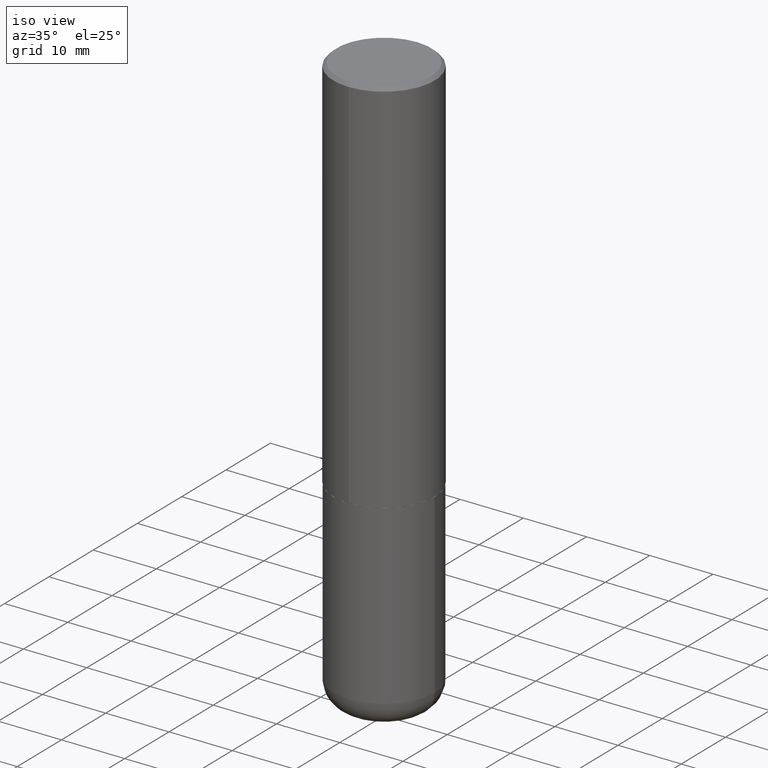
[diagram: clean part render]
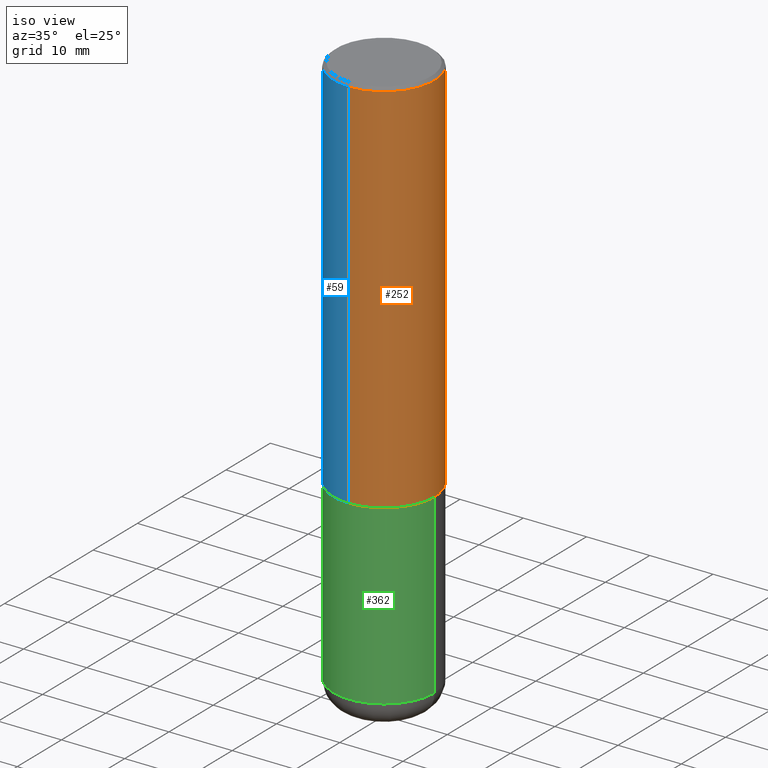
[diagram: same view with three faces highlighted in distinct colors, each labeled with its STEP entity id]
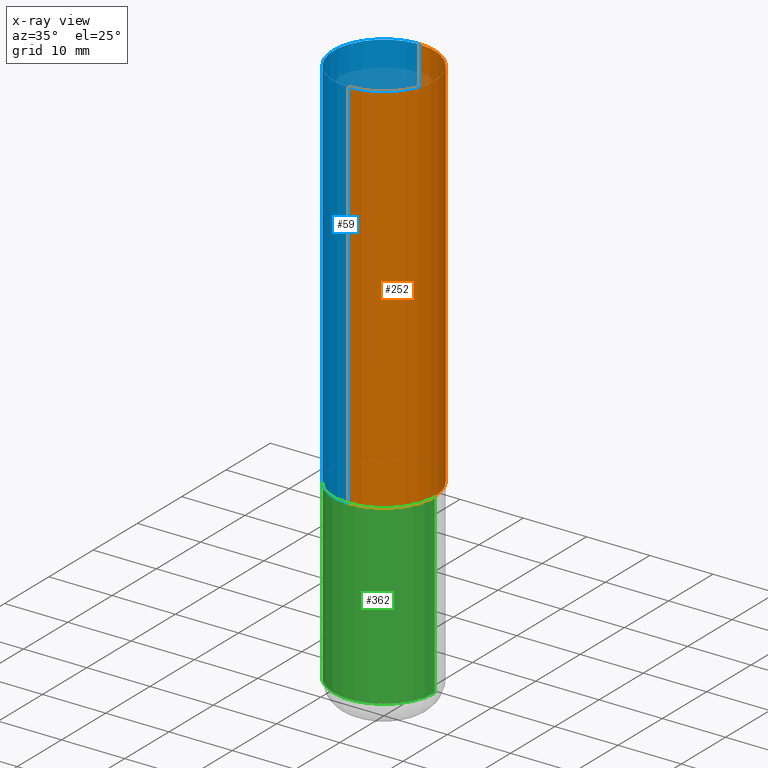
[diagram: x-ray of the same camera — body ghosted, the three highlighted faces saturated]
A machine part, iso view with three faces highlighted in distinct colors.
The next image is the same camera in x-ray (body ghosted, the three faces saturated) — at least one of them is partly hidden behind the body in this view.
Their STEP definitions:

[orange] entity #252 — the highlighted cylindrical surface (partial cylindrical patch) has radius 7.9997 mm, axis along (-0, 0, 1).
#7 = DIRECTION ( 'NONE',  ( -6.982962677686265922E-15, -1.000000000000000000, 3.469564049740290009E-15 ) ) ;
#11 = CARTESIAN_POINT ( 'NONE',  ( -2.160713844398143757E-15, -0.3149500000000001743, -0.01999999999999898387 ) ) ;
#14 = EDGE_CURVE ( 'NONE', #197, #44, #286, .T. ) ;
#40 = CARTESIAN_POINT ( 'NONE',  ( -2.199284095337290265E-15, -0.3149500000000001743, 1.100732624839394981E-15 ) ) ;
#44 = VERTEX_POINT ( 'NONE', #11 ) ;
#50 = CARTESIAN_POINT ( 'NONE',  ( -2.199284095337233467E-15, -0.3149500000000085564, -2.361199999999998411 ) ) ;
#53 = CARTESIAN_POINT ( 'NONE',  ( 0.000000000000000000, 0.000000000000000000, 0.000000000000000000 ) ) ;
#54 = VERTEX_POINT ( 'NONE', #390 ) ;
#68 = LINE ( 'NONE', #202, #392 ) ;
#70 = EDGE_CURVE ( 'NONE', #197, #54, #271, .T. ) ;
#73 = CARTESIAN_POINT ( 'NONE',  ( 4.886101632258876704E-31, -6.989888076452765624E-17, -0.02000000000000008715 ) ) ;
#75 = DIRECTION ( 'NONE',  ( -6.982962677686265922E-15, -1.000000000000000000, 3.496670018878888311E-15 ) ) ;
#100 = ORIENTED_EDGE ( 'NONE', *, *, #337, .T. ) ;
#122 = FACE_OUTER_BOUND ( 'NONE', #412, .T. ) ;
#150 = EDGE_CURVE ( 'NONE', #44, #182, #384, .T. ) ;
#160 = ORIENTED_EDGE ( 'NONE', *, *, #70, .T. ) ;
#182 = VERTEX_POINT ( 'NONE', #217 ) ;
#187 = DIRECTION ( 'NONE',  ( -2.443050816129427755E-29, 3.494944038226367750E-15, 1.000000000000000000 ) ) ;
#197 = VERTEX_POINT ( 'NONE', #50 ) ;
#202 = CARTESIAN_POINT ( 'NONE',  ( 2.237854346276435985E-15, 0.3149500000000001743, -1.100732624839394981E-15 ) ) ;
#212 = DIRECTION ( 'NONE',  ( -2.443050816129427755E-29, 3.494944038226367750E-15, 1.000000000000000000 ) ) ;
#217 = CARTESIAN_POINT ( 'NONE',  ( 2.199284095337290265E-15, 0.3149500000000000077, -0.02000000000000118697 ) ) ;
#221 = VECTOR ( 'NONE', #319, 39.37007874015748143 ) ;
#226 = DIRECTION ( 'NONE',  ( -6.982962677686264344E-15, -1.000000000000000000, 3.494944038226367355E-15 ) ) ;
#240 = CARTESIAN_POINT ( 'NONE',  ( 5.768531587044804082E-29, -8.252261863060098117E-15, -2.361199999999999299 ) ) ;
#250 = ORIENTED_EDGE ( 'NONE', *, *, #150, .F. ) ;
#252 = ADVANCED_FACE ( 'NONE', ( #122 ), #341, .T. ) ;
#271 = CIRCLE ( 'NONE', #354, 0.3149500000000002853 ) ;
#286 = LINE ( 'NONE', #40, #221 ) ;
#300 = ORIENTED_EDGE ( 'NONE', *, *, #14, .F. ) ;
#317 = DIRECTION ( 'NONE',  ( -2.443050816129427755E-29, 3.494944038226367750E-15, 1.000000000000000000 ) ) ;
#319 = DIRECTION ( 'NONE',  ( -2.443050816129427755E-29, 3.494944038226367750E-15, 1.000000000000000000 ) ) ;
#337 = EDGE_CURVE ( 'NONE', #54, #182, #68, .T. ) ;
#341 = CYLINDRICAL_SURFACE ( 'NONE', #361, 0.3149500000000001743 ) ;
#354 = AXIS2_PLACEMENT_3D ( 'NONE', #240, #212, #7 ) ;
#361 = AXIS2_PLACEMENT_3D ( 'NONE', #53, #187, #226 ) ;
#384 = CIRCLE ( 'NONE', #416, 0.3149500000000000632 ) ;
#389 = DIRECTION ( 'NONE',  ( -2.443050816129427755E-29, 3.494944038226367750E-15, 1.000000000000000000 ) ) ;
#390 = CARTESIAN_POINT ( 'NONE',  ( 2.237854346276465567E-15, 0.3149499999999920141, -2.361200000000000632 ) ) ;
#392 = VECTOR ( 'NONE', #317, 39.37007874015748143 ) ;
#412 = EDGE_LOOP ( 'NONE', ( #160, #100, #250, #300 ) ) ;
#416 = AXIS2_PLACEMENT_3D ( 'NONE', #73, #389, #75 ) ;

[blue] entity #59 — the highlighted cylindrical surface (partial cylindrical patch) has radius 7.9997 mm, axis along (-0, 0, 1).
#11 = CARTESIAN_POINT ( 'NONE',  ( -2.160713844398143757E-15, -0.3149500000000001743, -0.01999999999999898387 ) ) ;
#12 = FACE_OUTER_BOUND ( 'NONE', #193, .T. ) ;
#14 = EDGE_CURVE ( 'NONE', #197, #44, #286, .T. ) ;
#25 = ORIENTED_EDGE ( 'NONE', *, *, #14, .T. ) ;
#40 = CARTESIAN_POINT ( 'NONE',  ( -2.199284095337290265E-15, -0.3149500000000001743, 1.100732624839394981E-15 ) ) ;
#44 = VERTEX_POINT ( 'NONE', #11 ) ;
#50 = CARTESIAN_POINT ( 'NONE',  ( -2.199284095337233467E-15, -0.3149500000000085564, -2.361199999999998411 ) ) ;
#54 = VERTEX_POINT ( 'NONE', #390 ) ;
#59 = ADVANCED_FACE ( 'NONE', ( #12 ), #107, .T. ) ;
#68 = LINE ( 'NONE', #202, #392 ) ;
#82 = ORIENTED_EDGE ( 'NONE', *, *, #337, .F. ) ;
#92 = EDGE_CURVE ( 'NONE', #182, #44, #135, .T. ) ;
#98 = CARTESIAN_POINT ( 'NONE',  ( 5.768531587044804082E-29, -8.252261863060098117E-15, -2.361199999999999299 ) ) ;
#107 = CYLINDRICAL_SURFACE ( 'NONE', #275, 0.3149500000000001743 ) ;
#135 = CIRCLE ( 'NONE', #313, 0.3149500000000000632 ) ;
#145 = DIRECTION ( 'NONE',  ( -6.982962677686264344E-15, -1.000000000000000000, 3.494944038226367355E-15 ) ) ;
#147 = CARTESIAN_POINT ( 'NONE',  ( 0.000000000000000000, 0.000000000000000000, 0.000000000000000000 ) ) ;
#149 = ORIENTED_EDGE ( 'NONE', *, *, #92, .F. ) ;
#153 = CIRCLE ( 'NONE', #299, 0.3149500000000002853 ) ;
#182 = VERTEX_POINT ( 'NONE', #217 ) ;
#190 = ORIENTED_EDGE ( 'NONE', *, *, #322, .T. ) ;
#193 = EDGE_LOOP ( 'NONE', ( #82, #190, #25, #149 ) ) ;
#197 = VERTEX_POINT ( 'NONE', #50 ) ;
#202 = CARTESIAN_POINT ( 'NONE',  ( 2.237854346276435985E-15, 0.3149500000000001743, -1.100732624839394981E-15 ) ) ;
#209 = DIRECTION ( 'NONE',  ( -2.443050816129427755E-29, 3.494944038226367750E-15, 1.000000000000000000 ) ) ;
#217 = CARTESIAN_POINT ( 'NONE',  ( 2.199284095337290265E-15, 0.3149500000000000077, -0.02000000000000118697 ) ) ;
#221 = VECTOR ( 'NONE', #319, 39.37007874015748143 ) ;
#232 = DIRECTION ( 'NONE',  ( -2.443050816129427755E-29, 3.494944038226367750E-15, 1.000000000000000000 ) ) ;
#234 = DIRECTION ( 'NONE',  ( -6.982962677686265922E-15, -1.000000000000000000, 3.496670018878888311E-15 ) ) ;
#275 = AXIS2_PLACEMENT_3D ( 'NONE', #147, #329, #145 ) ;
#286 = LINE ( 'NONE', #40, #221 ) ;
#299 = AXIS2_PLACEMENT_3D ( 'NONE', #98, #232, #356 ) ;
#313 = AXIS2_PLACEMENT_3D ( 'NONE', #385, #209, #234 ) ;
#317 = DIRECTION ( 'NONE',  ( -2.443050816129427755E-29, 3.494944038226367750E-15, 1.000000000000000000 ) ) ;
#319 = DIRECTION ( 'NONE',  ( -2.443050816129427755E-29, 3.494944038226367750E-15, 1.000000000000000000 ) ) ;
#322 = EDGE_CURVE ( 'NONE', #54, #197, #153, .T. ) ;
#329 = DIRECTION ( 'NONE',  ( -2.443050816129427755E-29, 3.494944038226367750E-15, 1.000000000000000000 ) ) ;
#337 = EDGE_CURVE ( 'NONE', #54, #182, #68, .T. ) ;
#356 = DIRECTION ( 'NONE',  ( -6.982962677686265922E-15, -1.000000000000000000, 3.469564049740290009E-15 ) ) ;
#385 = CARTESIAN_POINT ( 'NONE',  ( 4.886101632258876704E-31, -6.989888076452765624E-17, -0.02000000000000008715 ) ) ;
#390 = CARTESIAN_POINT ( 'NONE',  ( 2.237854346276465567E-15, 0.3149499999999920141, -2.361200000000000632 ) ) ;
#392 = VECTOR ( 'NONE', #317, 39.37007874015748143 ) ;

[green] entity #362 — the highlighted cylindrical surface (partial cylindrical patch) has radius 7.9997 mm, axis along (-0, 0, 1).
#1 = EDGE_CURVE ( 'NONE', #132, #163, #119, .T. ) ;
#33 = CYLINDRICAL_SURFACE ( 'NONE', #336, 0.3149500000000000077 ) ;
#36 = DIRECTION ( 'NONE',  ( -2.445468806185136877E-29, 3.491481338843145188E-15, 1.000000000000000000 ) ) ;
#38 = CARTESIAN_POINT ( 'NONE',  ( 5.776686413970529753E-29, -8.247577218615278049E-15, -2.362199999999999633 ) ) ;
#39 = AXIS2_PLACEMENT_3D ( 'NONE', #129, #201, #162 ) ;
#52 = ORIENTED_EDGE ( 'NONE', *, *, #238, .F. ) ;
#80 = EDGE_CURVE ( 'NONE', #163, #309, #325, .T. ) ;
#104 = FACE_OUTER_BOUND ( 'NONE', #125, .T. ) ;
#116 = ORIENTED_EDGE ( 'NONE', *, *, #1, .T. ) ;
#119 = CIRCLE ( 'NONE', #39, 0.3149500000000000632 ) ;
#125 = EDGE_LOOP ( 'NONE', ( #52, #116, #256, #213 ) ) ;
#129 = CARTESIAN_POINT ( 'NONE',  ( 8.472326679028403758E-29, -1.209623709842207549E-14, -3.464499999999999247 ) ) ;
#132 = VERTEX_POINT ( 'NONE', #323 ) ;
#139 = DIRECTION ( 'NONE',  ( -2.445468806185136597E-29, 3.491481338843145583E-15, 1.000000000000000000 ) ) ;
#141 = EDGE_CURVE ( 'NONE', #156, #309, #306, .T. ) ;
#156 = VERTEX_POINT ( 'NONE', #371 ) ;
#162 = DIRECTION ( 'NONE',  ( 1.000000000000000000, -6.982962677686268288E-15, 0.000000000000000000 ) ) ;
#163 = VERTEX_POINT ( 'NONE', #352 ) ;
#165 = CARTESIAN_POINT ( 'NONE',  ( 0.000000000000000000, 0.000000000000000000, 0.000000000000000000 ) ) ;
#201 = DIRECTION ( 'NONE',  ( -2.445468806185136597E-29, 3.491481338843145583E-15, 1.000000000000000000 ) ) ;
#213 = ORIENTED_EDGE ( 'NONE', *, *, #141, .F. ) ;
#231 = VECTOR ( 'NONE', #276, 39.37007874015748143 ) ;
#238 = EDGE_CURVE ( 'NONE', #132, #156, #303, .T. ) ;
#256 = ORIENTED_EDGE ( 'NONE', *, *, #80, .T. ) ;
#263 = DIRECTION ( 'NONE',  ( 1.000000000000000000, -6.982962677686266711E-15, 0.000000000000000000 ) ) ;
#269 = CARTESIAN_POINT ( 'NONE',  ( 0.3149500000000000077, -2.199284095337289871E-15, 1.535751875536930130E-29 ) ) ;
#276 = DIRECTION ( 'NONE',  ( -2.445468806185136877E-29, 3.491481338843145188E-15, 1.000000000000000000 ) ) ;
#303 = LINE ( 'NONE', #333, #231 ) ;
#306 = CIRCLE ( 'NONE', #400, 0.3149500000000000077 ) ;
#309 = VERTEX_POINT ( 'NONE', #315 ) ;
#315 = CARTESIAN_POINT ( 'NONE',  ( 0.3149500000000000077, -1.044686131395256792E-14, -2.362199999999999633 ) ) ;
#323 = CARTESIAN_POINT ( 'NONE',  ( -0.3149500000000001743, -9.858382752145637926E-15, -3.464499999999999247 ) ) ;
#324 = DIRECTION ( 'NONE',  ( 1.000000000000000000, -6.982962677686266711E-15, 4.876176775795936353E-29 ) ) ;
#325 = LINE ( 'NONE', #269, #368 ) ;
#333 = CARTESIAN_POINT ( 'NONE',  ( -0.3149500000000000077, 2.237854346276435590E-15, -1.549218606675782676E-29 ) ) ;
#336 = AXIS2_PLACEMENT_3D ( 'NONE', #165, #415, #324 ) ;
#352 = CARTESIAN_POINT ( 'NONE',  ( 0.3149500000000001743, -1.429552119375936694E-14, -3.464499999999999247 ) ) ;
#362 = ADVANCED_FACE ( 'NONE', ( #104 ), #33, .T. ) ;
#368 = VECTOR ( 'NONE', #36, 39.37007874015748143 ) ;
#371 = CARTESIAN_POINT ( 'NONE',  ( -0.3149500000000000077, -7.934052812242240784E-15, -2.362199999999999633 ) ) ;
#400 = AXIS2_PLACEMENT_3D ( 'NONE', #38, #139, #263 ) ;
#415 = DIRECTION ( 'NONE',  ( -2.445468806185136597E-29, 3.491481338843145583E-15, 1.000000000000000000 ) ) ;